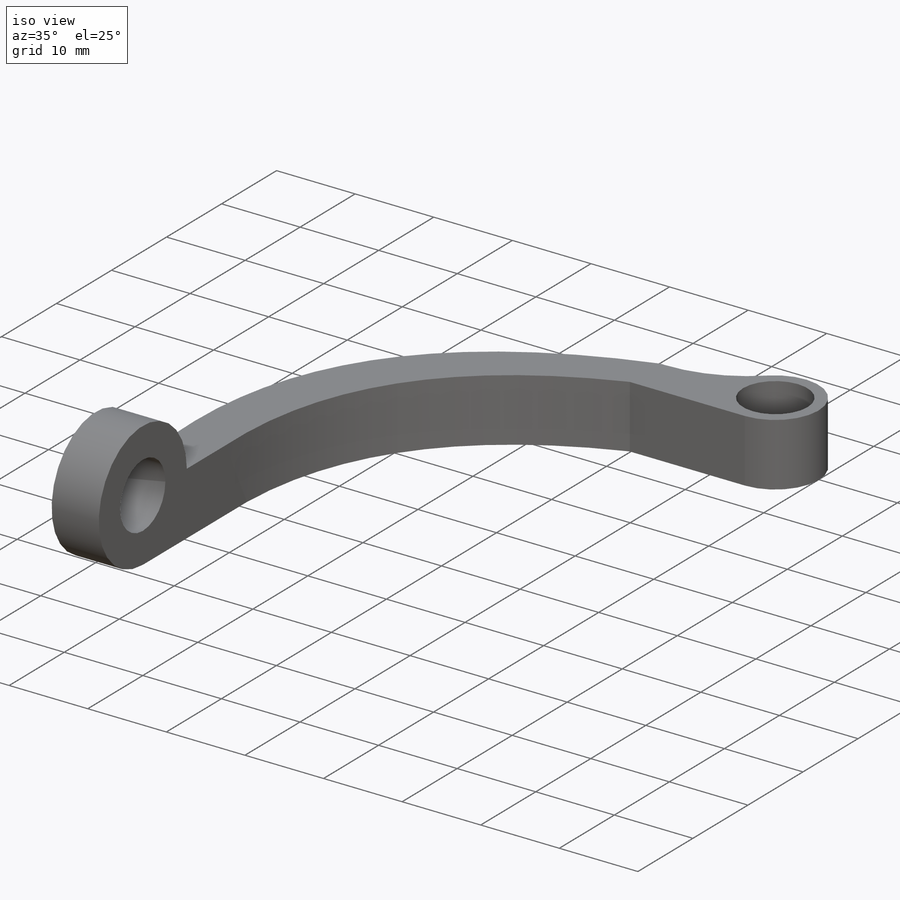
[diagram: iso view]
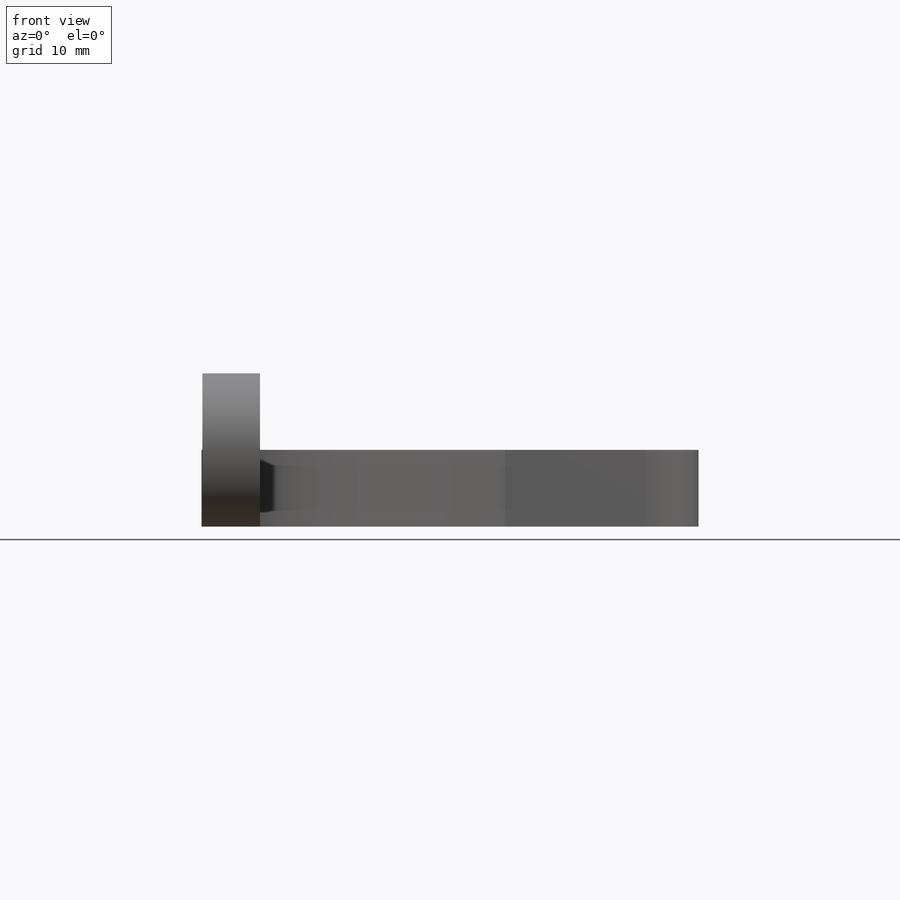
[diagram: front view]
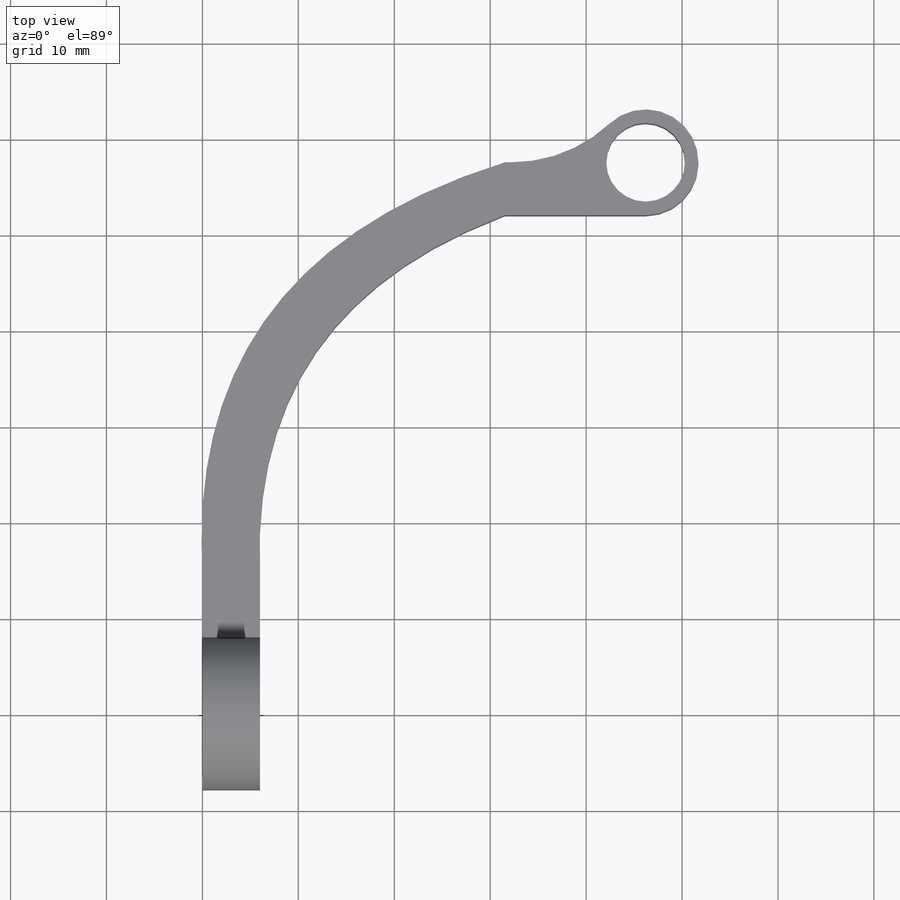
[diagram: top view]
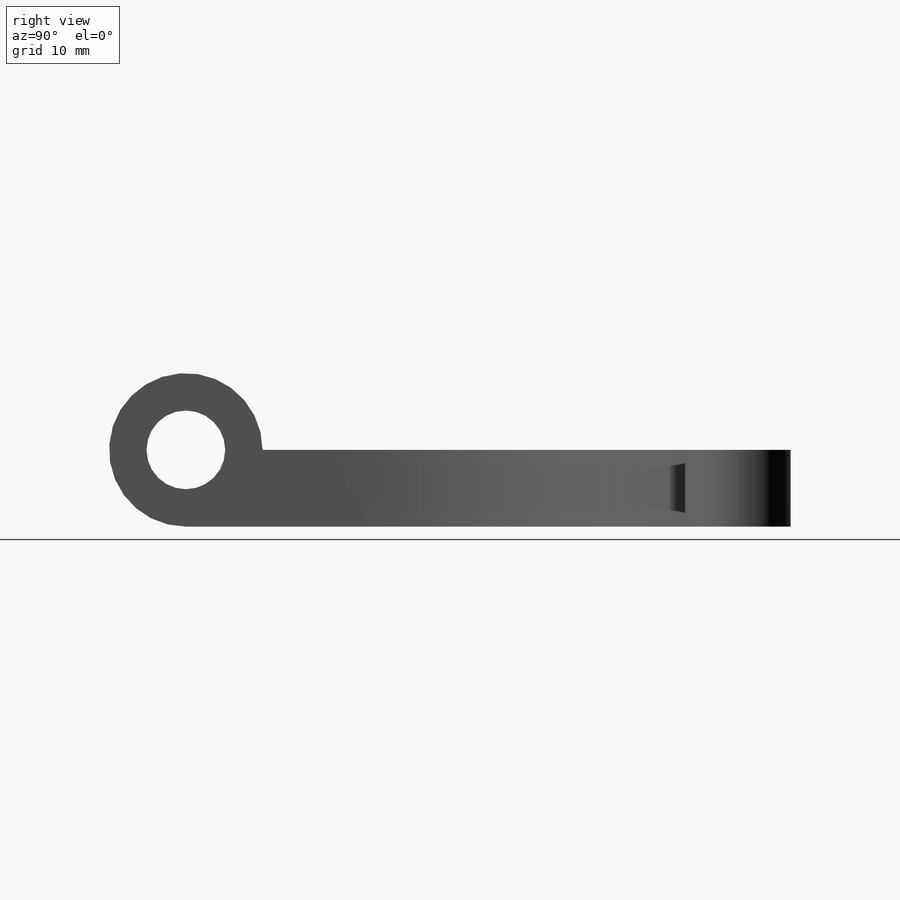
[diagram: right view]
SOLIDWORKS PART (.sldprt)
format: sldprt  version: not decoded by parser v0  size: 188,928 bytes
history: native  units: mm
features: sketch x5, plane x3, extrude x3, cut_extrude x2, material x1, fillet x1 (+9 scaffold rows collapsed)
feature tree (24):
  scaffold x9  (default folders/planes/origin — collapsed)
  material  "Material <não especificado>"
  plane  "Plano frontal"
  plane  "Plano superior"
  plane  "Plano direito"
  sketch  "Esboço1"  dims[c1.D6=30.0mm c1.D1=55.0mm c1.D2=40.0mm c1.D3=6.0mm c1.D4=6.0mm c1.D5=3.0mm c2.D6=15.0mm c2.D4=15.0mm]
  extrude  "Ressalto-extrusão4"  Depth=8mm
  sketch  "Esboço7"  dims[D1=4.0mm]
  cut_extrude  "Corte-extrusão3"  Depth=8mm
  sketch  "Esboço8"  dims[D1=~4.20233mm]
  extrude  "Ressalto-extrusão5"  Depth=6mm
  sketch  "Esboço14"  dims[D1=~3.522639mm]
  extrude  "Ressalto-extrusão8"  Depth=8mm
  fillet  "Filete3"  Radius=15mm
  sketch  "Esboço15"
  cut_extrude  "Corte-extrusão6"  Depth=8mm
decode coverage: 10 of 11 modeling features carry decoded parameters
note: ~ marks probable driven/reference dimensions
note: suppression state not decoded; provenance and decode notes live in map.json
